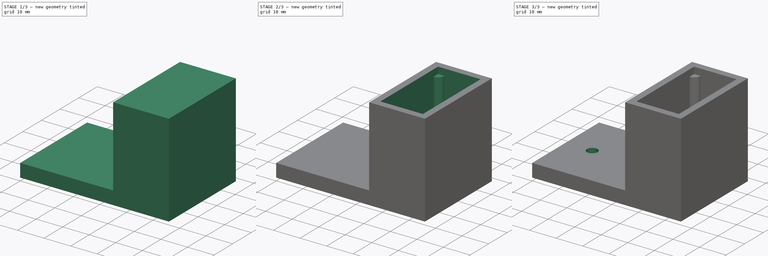
[diagram: build sequence overview — one tinted view per stage of 3, left to right]
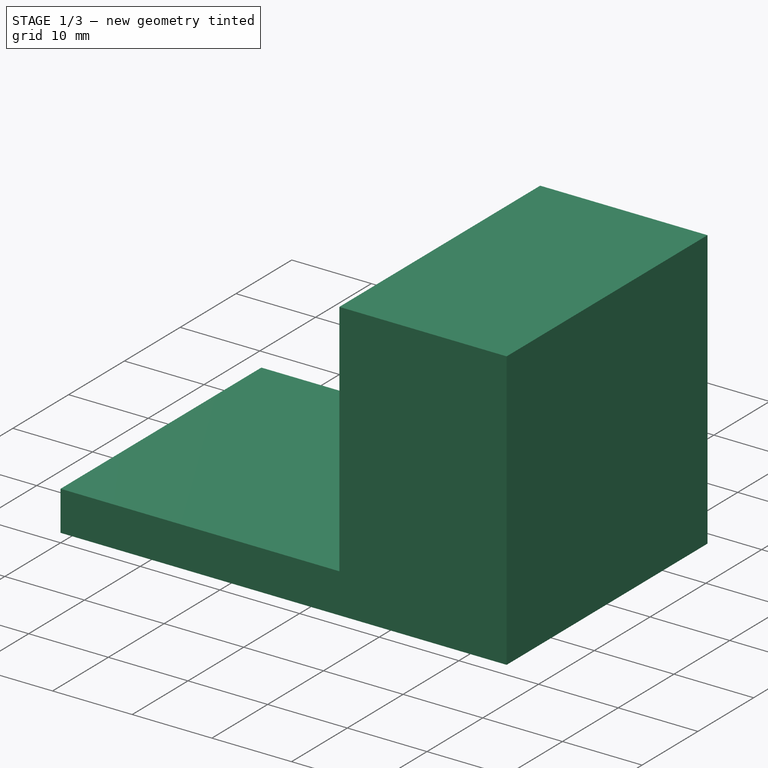
[diagram: stage 1 of 3 — iso view after this stage's code; geometry added in this stage tinted green]
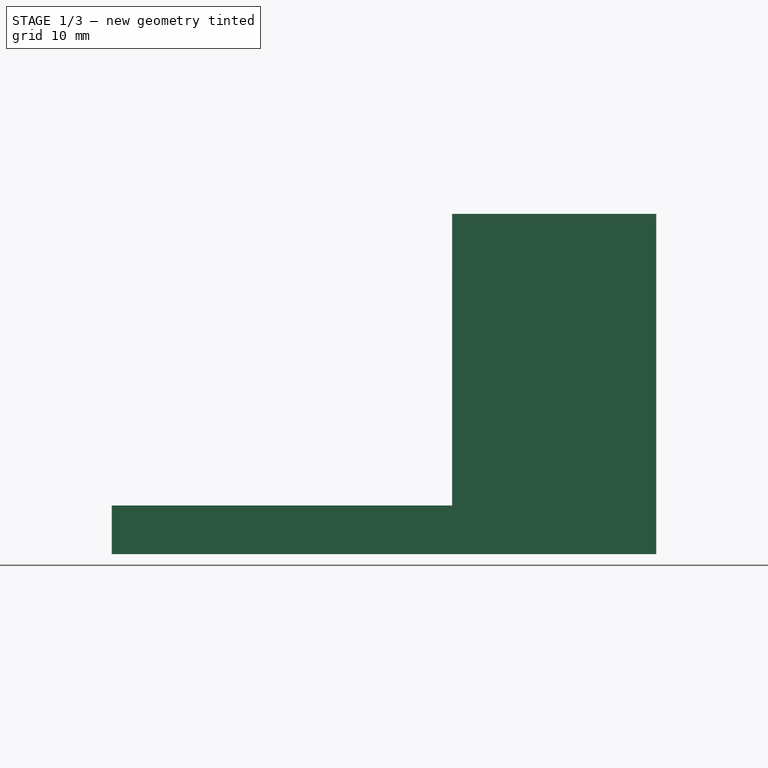
[diagram: stage 1 of 3 — front view after this stage's code; geometry added in this stage tinted green]
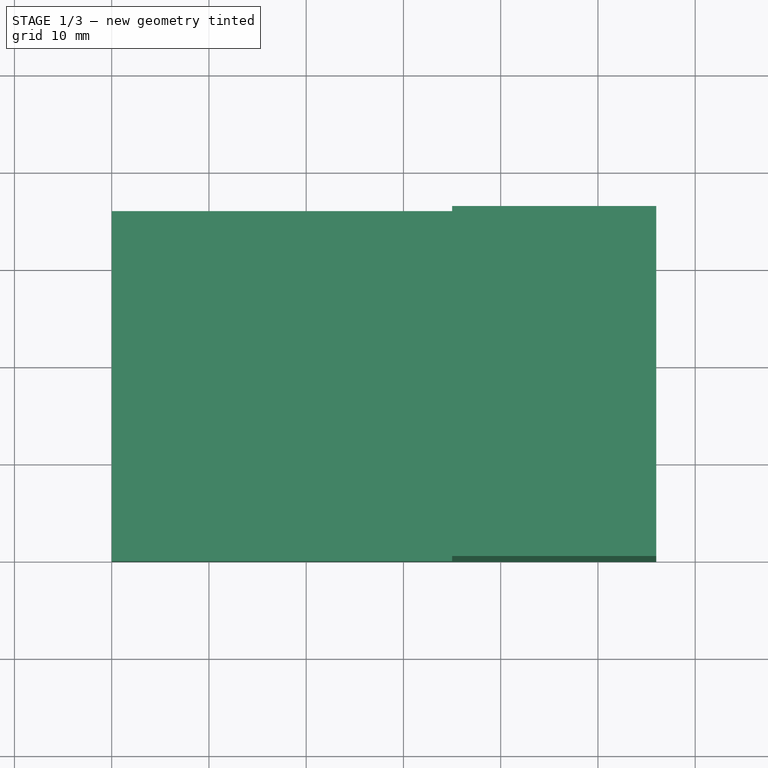
[diagram: stage 1 of 3 — top view after this stage's code; geometry added in this stage tinted green]
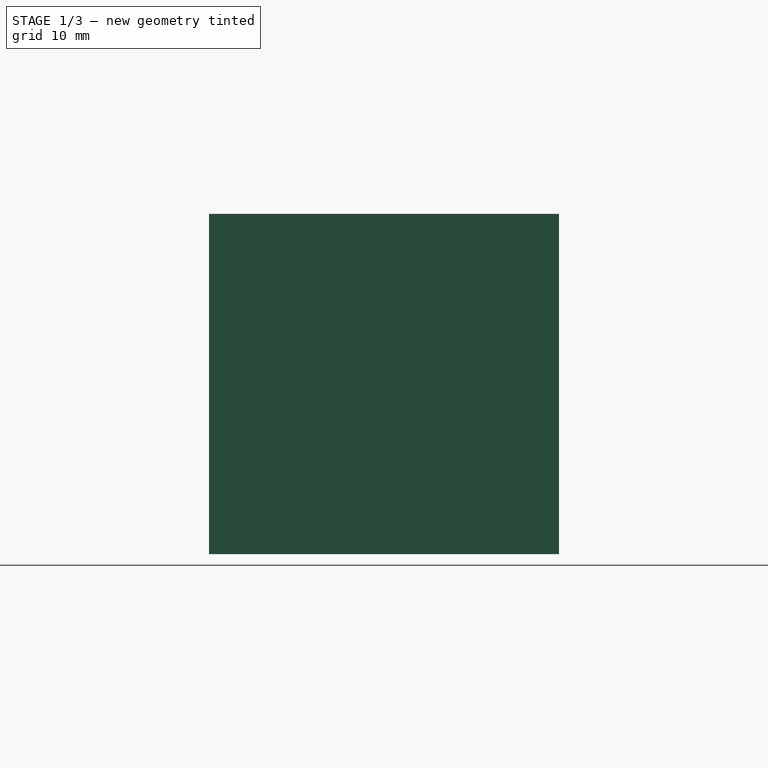
[diagram: stage 1 of 3 — right view after this stage's code; geometry added in this stage tinted green]
FCSTD DOCUMENT  (FreeCAD 0.20R29410 (Git))
Label: body
License: All rights reserved
LicenseURL: http://en.wikipedia.org/wiki/All_rights_reserved
objects: Sketcher::SketchObject×6, PartDesign::Pad×3, PartDesign::Pocket×3, Spreadsheet::Sheet×1, PartDesign::Body×1, App::Part×1
note: 19 computed .brp shape members not serialized (recipe doc carries the construction recipe); baked Part::Feature solids carry a one-line shape summary decoded from their .brp

FEATURE [Sketcher::SketchObject] Sketch
  FullyConstrained = true
  MapMode = 5
  Support = -> [XY_Plane001]
  expr: Constraints[10] = <<P>>.switchBoxLength
  expr: Constraints[9] = <<P>>.tabLength + <<P>>.switchBoxWidth
  sketch-geometry (4):
    g0: LineSegment StartX=0 StartY=0 StartZ=0 EndX=56 EndY=0 EndZ=0
    g1: LineSegment StartX=56 StartY=0 StartZ=0 EndX=56 EndY=36 EndZ=0
    g2: LineSegment StartX=56 StartY=36 StartZ=0 EndX=0 EndY=36 EndZ=0
    g3: LineSegment StartX=0 StartY=36 StartZ=0 EndX=0 EndY=0 EndZ=0
  constraints (11):
    c: Coincident(g0,g1)
    c: Coincident(g1,g2)
    c: Coincident(g2,g3)
    c: Coincident(g3,g0)
    c: Horizontal(g0)
    c: Horizontal(g2)
    c: Vertical(g1)
    c: Vertical(g3)
    c: Coincident(g0,g-1)
    c: DistanceX(g2,g2) = 56
    c: DistanceY(g1,g1) = 36
FEATURE [PartDesign::Pad] Pad  label="base-pad"
  Direction = (0,0,1)
  Length = 5
  Length2 = 10
  Profile = -> Sketch
  ReferenceAxis = -> Sketch [N_Axis]
  Type = 0
FEATURE [Sketcher::SketchObject] Sketch001
  ExternalGeometry = -> [Pad]
  FullyConstrained = true
  MapMode = 5
  Placement = pos=(0,0,5) rot=(0,0,1;0rad)
  Support = -> [Pad]
  expr: Constraints[10] = <<P>>.switchBoxWidth
  sketch-geometry (4):
    g0: LineSegment StartX=56 StartY=36 StartZ=0 EndX=35 EndY=36 EndZ=0
    g1: LineSegment StartX=35 StartY=36 StartZ=0 EndX=35 EndY=0 EndZ=0
    g2: LineSegment StartX=35 StartY=0 StartZ=0 EndX=56 EndY=0 EndZ=0
    g3: LineSegment StartX=56 StartY=0 StartZ=0 EndX=56 EndY=36 EndZ=0
  constraints (11):
    c: Coincident(g0,g1)
    c: Coincident(g1,g2)
    c: Coincident(g2,g3)
    c: Coincident(g3,g0)
    c: Horizontal(g0)
    c: Horizontal(g2)
    c: Vertical(g1)
    c: Vertical(g3)
    c: Coincident(g0,g-4)
    c: DistanceY(g-5,g1) = 0
    c: DistanceX(g0,g0) = 21
FEATURE [PartDesign::Pad] Pad001  label="switch-box-pad"
  BaseFeature = -> Pad
  Direction = (0,0,1)
  Length = 30
  Length2 = 10
  Profile = -> Sketch001
  ReferenceAxis = -> Sketch001 [N_Axis]
  Type = 0
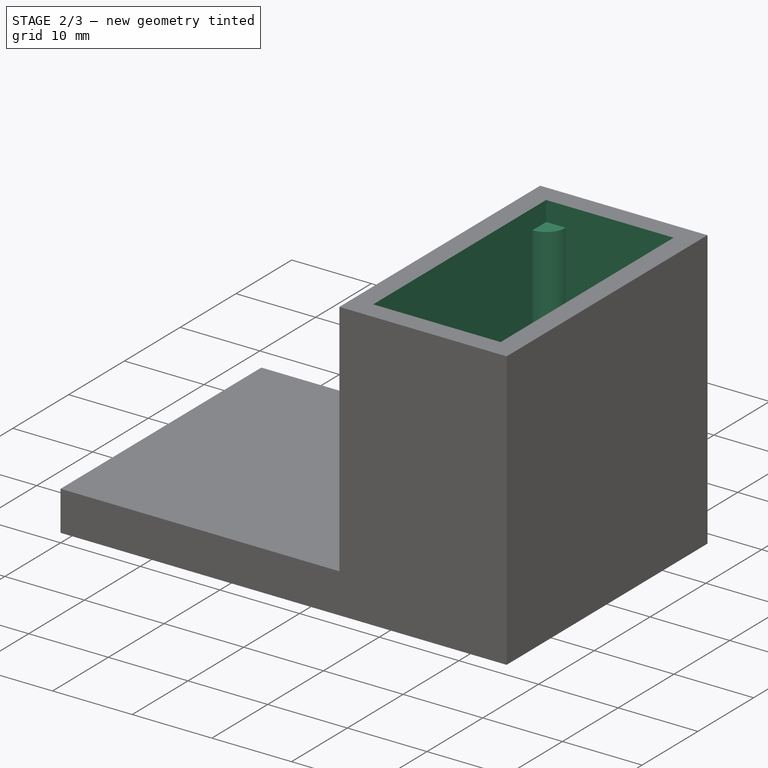
[diagram: stage 2 of 3 — iso view after this stage's code; geometry added in this stage tinted green]
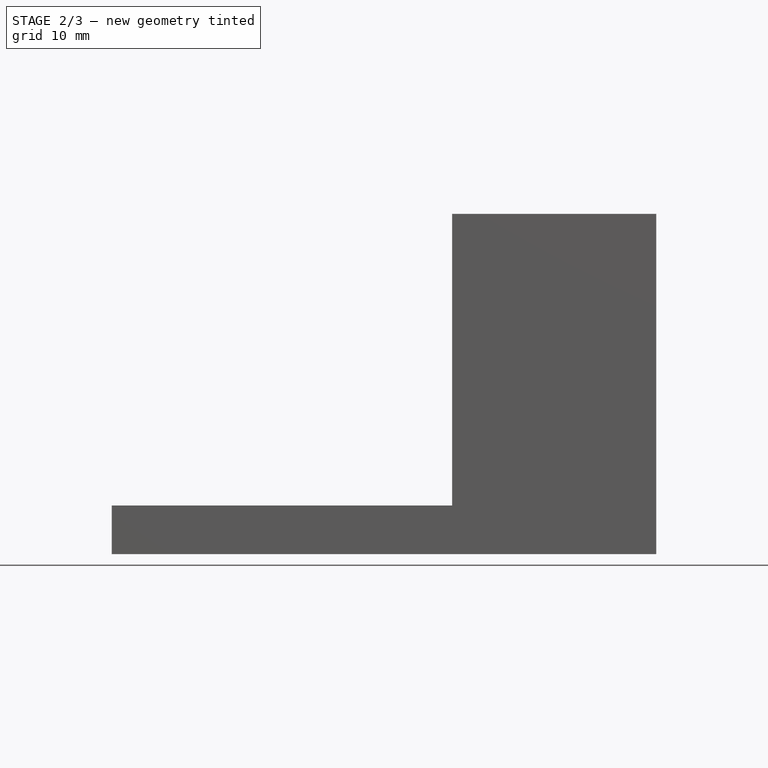
[diagram: stage 2 of 3 — front view after this stage's code; geometry added in this stage tinted green]
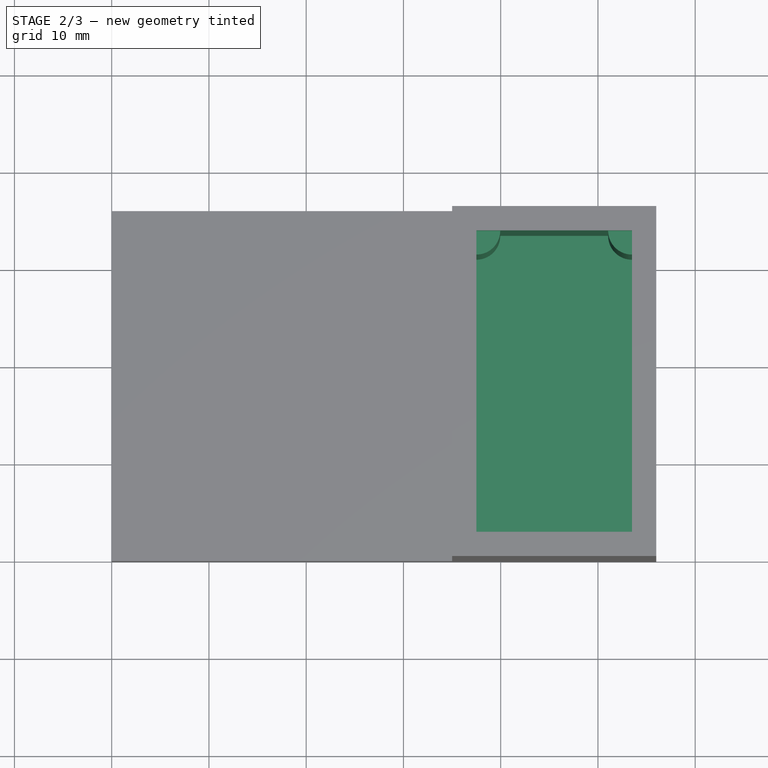
[diagram: stage 2 of 3 — top view after this stage's code; geometry added in this stage tinted green]
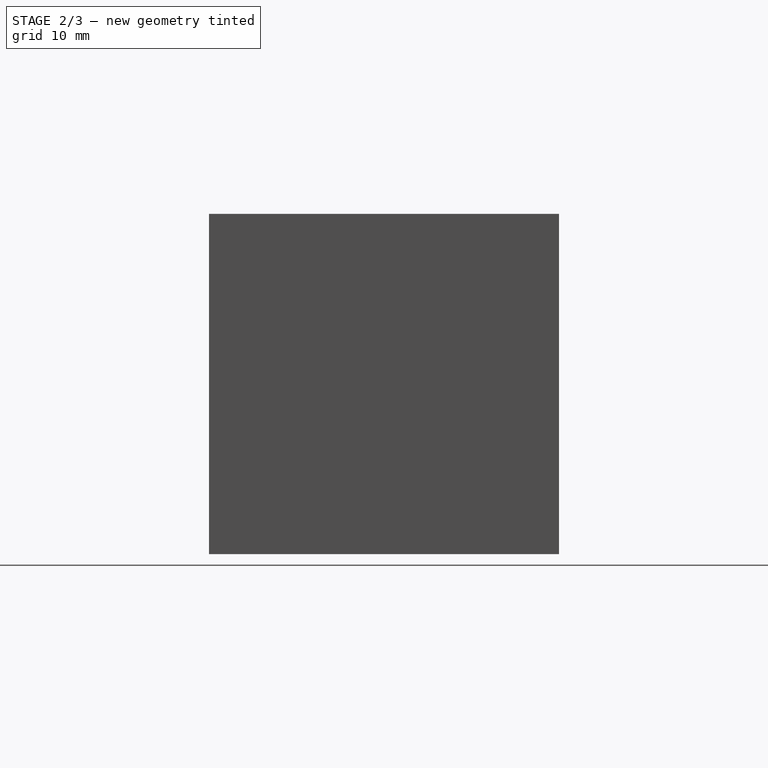
[diagram: stage 2 of 3 — right view after this stage's code; geometry added in this stage tinted green]
FEATURE [Sketcher::SketchObject] Sketch002
  ExternalGeometry = -> [Pad001]
  FullyConstrained = true
  MapMode = 5
  Placement = pos=(0,0,35) rot=(0,0,1;0rad)
  Support = -> [Pad001]
  expr: Constraints[10] = <<P>>.wallThickness
  expr: Constraints[11] = <<P>>.wallThickness
  expr: Constraints[8] = <<P>>.wallThickness
  expr: Constraints[9] = <<P>>.wallThickness
  sketch-geometry (4):
    g0: LineSegment StartX=37.5 StartY=33.5 StartZ=0 EndX=53.5 EndY=33.5 EndZ=0
    g1: LineSegment StartX=53.5 StartY=33.5 StartZ=0 EndX=53.5 EndY=2.5 EndZ=0
    g2: LineSegment StartX=53.5 StartY=2.5 StartZ=0 EndX=37.5 EndY=2.5 EndZ=0
    g3: LineSegment StartX=37.5 StartY=2.5 StartZ=0 EndX=37.5 EndY=33.5 EndZ=0
  constraints (12):
    c: Coincident(g0,g1)
    c: Coincident(g1,g2)
    c: Coincident(g2,g3)
    c: Coincident(g3,g0)
    c: Horizontal(g0)
    c: Horizontal(g2)
    c: Vertical(g1)
    c: Vertical(g3)
    c: DistanceY(g0,g-3) = 2.5
    c: DistanceY(g-3,g2) = 2.5
    c: DistanceX(g-3,g2) = 2.5
    c: DistanceX(g1,g-4) = 2.5
FEATURE [Spreadsheet::Sheet] Spreadsheet  label="P"
  cells = A1=wallThickness; B1(wallThickness)=2.5; A2=switchBoxHeight; B2(switchBoxHeight)==D2 - tabThickness / 2; C2=interior height; D2=33; A3=switchBoxLength; B3(switchBoxLength)=36; A4=switchBoxWidth; B4(switchBoxWidth)=21; A5=tabThickness; B5(tabThickness)=5; A6=tabLength; B6(tabLength)=35
FEATURE [PartDesign::Pocket] Pocket  label="switch-box-interior-pocket"
  BaseFeature = -> Pad001
  Direction = (0,0,-1)
  Length = 33
  Length2 = 5
  Profile = -> Sketch002
  ReferenceAxis = -> Sketch002 [N_Axis]
  Type = 0
  expr: Length = <<P>>.switchBoxHeight + <<P>>.tabThickness * 0.5
FEATURE [Sketcher::SketchObject] Sketch003
  ExternalGeometry = -> [Pocket]
  FullyConstrained = true
  MapMode = 5
  Placement = pos=(0,0,2) rot=(0,0,1;0rad)
  Support = -> [Pocket]
  expr: Constraints[1] = 2 * <<P>>.wallThickness - 0.1
  expr: Constraints[5] = 2 * <<P>>.wallThickness - 0.1
  expr: Constraints[6] = 2 * <<P>>.wallThickness - 0.1
  expr: Constraints[7] = 2 * <<P>>.wallThickness - 0.1
  sketch-geometry (4):
    g0: Circle CenterX=37.5 CenterY=33.5 CenterZ=0 NormalX=0 NormalY=0 NormalZ=1 AngleXU=0 Radius=2.45
    g1: Circle CenterX=53.5 CenterY=33.5 CenterZ=0 NormalX=0 NormalY=0 NormalZ=1 AngleXU=0 Radius=2.45
    g2: Circle CenterX=37.5 CenterY=2.5 CenterZ=0 NormalX=0 NormalY=0 NormalZ=1 AngleXU=0 Radius=2.45
    g3: Circle CenterX=53.5 CenterY=2.5 CenterZ=0 NormalX=0 NormalY=0 NormalZ=1 AngleXU=0 Radius=2.45
  constraints (8):
    c: Coincident(g0,g-4)
    c: Diameter(g0) = 4.9
    c: Coincident(g1,g-5)
    c: Coincident(g2,g-3)
    c: Coincident(g3,g-5)
    c: Diameter(g2) = 4.9
    c: Diameter(g3) = 4.9
    c: Diameter(g1) = 4.9
FEATURE [PartDesign::Pad] Pad002  label="switch-support-pads"
  BaseFeature = -> Pocket
  Direction = (0,0,1)
  Length = 30.5
  Length2 = 10
  Profile = -> Sketch003
  ReferenceAxis = -> Sketch003 [N_Axis]
  Type = 0
  expr: Length = <<P>>.switchBoxHeight
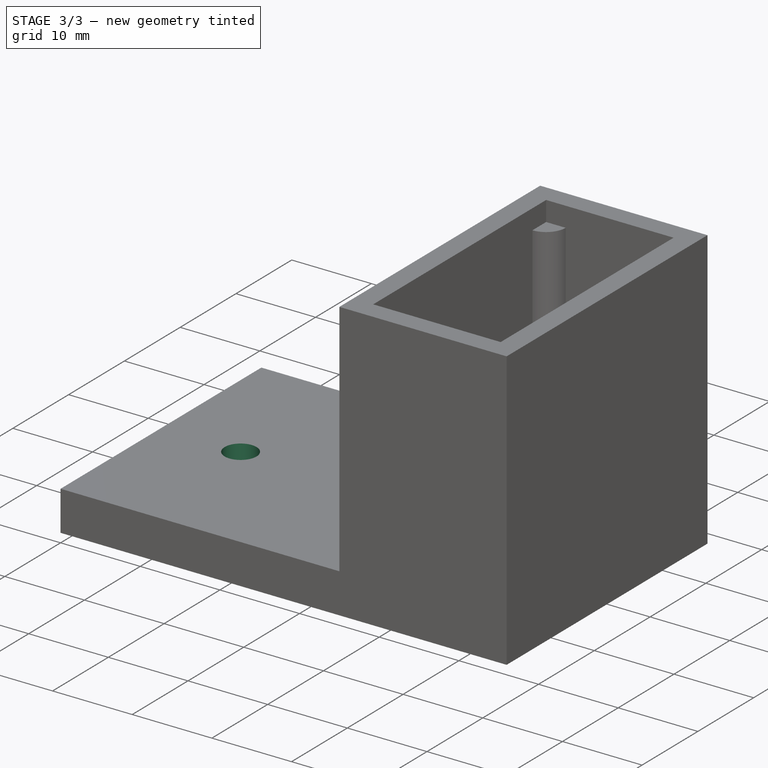
[diagram: stage 3 of 3 — iso view after this stage's code; geometry added in this stage tinted green]
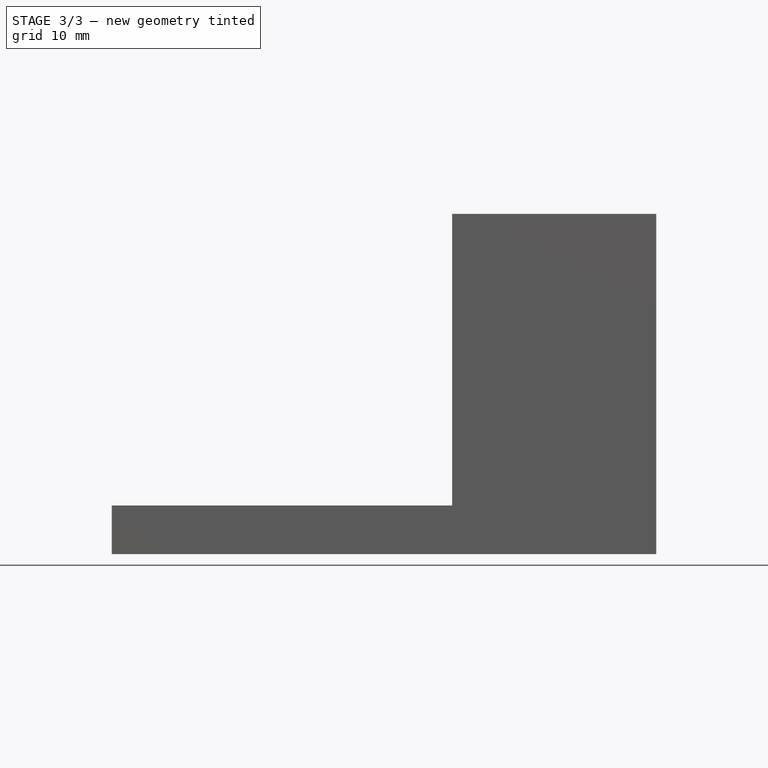
[diagram: stage 3 of 3 — front view after this stage's code; geometry added in this stage tinted green]
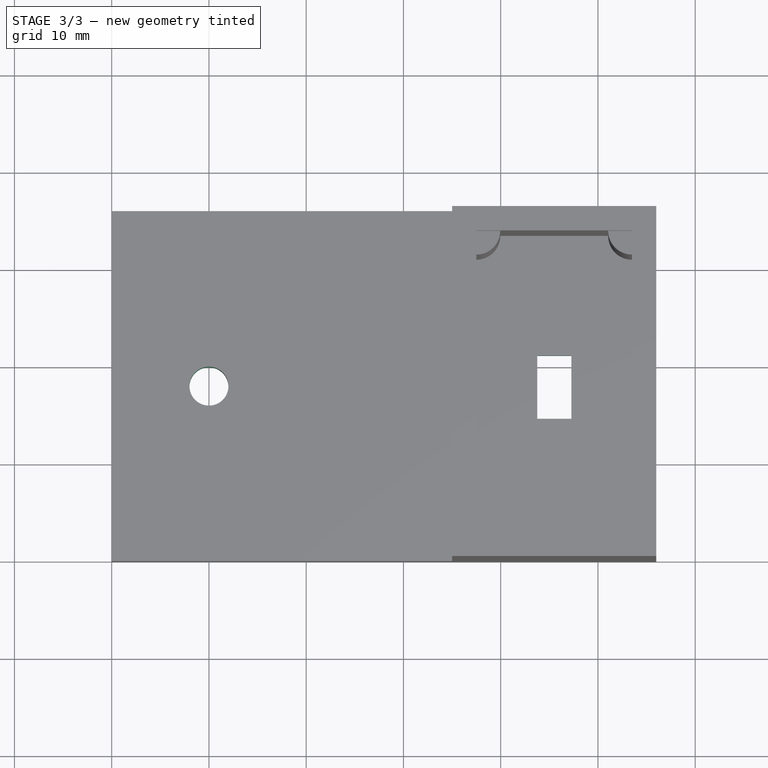
[diagram: stage 3 of 3 — top view after this stage's code; geometry added in this stage tinted green]
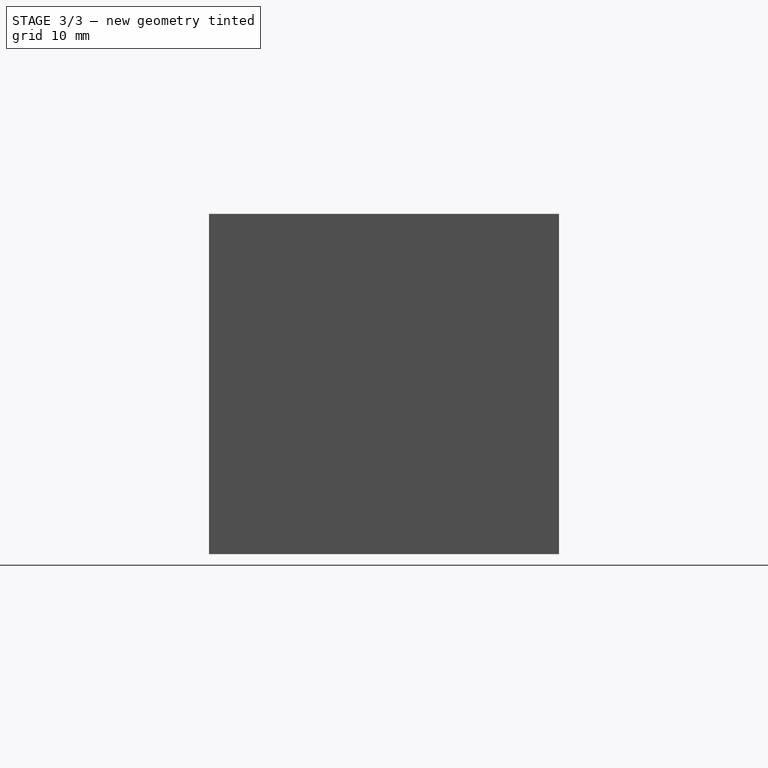
[diagram: stage 3 of 3 — right view after this stage's code; geometry added in this stage tinted green]
FEATURE [Sketcher::SketchObject] Sketch004
  ExternalGeometry = -> [Pad002]
  FullyConstrained = false
  MapMode = 5
  Placement = pos=(0,0,2) rot=(0,0,1;0rad)
  Support = -> [Pad002]
  sketch-geometry (7):
    g0: LineSegment StartX=43.7633 StartY=21.1912 StartZ=0 EndX=47.2633 EndY=21.1912 EndZ=0
    g1: LineSegment StartX=47.2633 StartY=21.1912 StartZ=0 EndX=47.2633 EndY=14.6912 EndZ=0
    g2: LineSegment StartX=47.2633 StartY=14.6912 StartZ=0 EndX=43.7633 EndY=14.6912 EndZ=0
    g3: LineSegment StartX=43.7633 StartY=14.6912 StartZ=0 EndX=43.7633 EndY=21.1912 EndZ=0
    g4: LineSegment StartX=37.5 StartY=33.5 StartZ=0 EndX=53.5 EndY=2.5 EndZ=0
    g5: LineSegment StartX=53.5 StartY=33.2988 StartZ=0 EndX=53.5 EndY=33.5 EndZ=0
    g6: LineSegment StartX=53.5 StartY=33.2988 StartZ=0 EndX=37.5 EndY=2.5 EndZ=0
  constraints (15):
    c: Coincident(g0,g1)
    c: Coincident(g1,g2)
    c: Coincident(g2,g3)
    c: Coincident(g3,g0)
    c: Horizontal(g0)
    c: Horizontal(g2)
    c: Vertical(g1)
    c: Vertical(g3)
    c: DistanceX(g0,g0) = 3.5
    c: DistanceY(g1,g1) = 6.5
    c: Coincident(g4,g-3)
    c: PointOnObject(g5,g-4)
    c: Coincident(g5,g-4)
    c: Coincident(g6,g5)
    c: Coincident(g6,g-3)
FEATURE [PartDesign::Pocket] Pocket001  label="power-cord-slot"
  BaseFeature = -> Pad002
  Direction = (0,0,-1)
  Length = 5
  Length2 = 5
  Profile = -> Sketch004
  ReferenceAxis = -> Sketch004 [N_Axis]
  Type = 2
FEATURE [Sketcher::SketchObject] Sketch005
  ExternalGeometry = -> [Pocket001]
  FullyConstrained = true
  MapMode = 5
  Placement = pos=(0,0,5) rot=(0,0,1;0rad)
  Support = -> [Pocket001]
  expr: Constraints[2] = <<P>>.switchBoxLength / 2
  sketch-geometry (1):
    g0: Circle CenterX=10 CenterY=18 CenterZ=0 NormalX=0 NormalY=0 NormalZ=1 AngleXU=0 Radius=2
  constraints (3):
    c: Diameter(g0) = 4
    c: DistanceX(g0,g-4) = 25
    c: DistanceY(g-1,g0) = 18
FEATURE [PartDesign::Pocket] Pocket002
  BaseFeature = -> Pocket001
  Direction = (0,0,-1)
  Length = 5
  Length2 = 5
  Profile = -> Sketch005
  ReferenceAxis = -> Sketch005 [N_Axis]
  Type = 2
FEATURE [PartDesign::Body] Body
  Group = -> [Sketch,Pad,Sketch001,Pad001,Sketch002,Pocket,Sketch003,Pad002,Sketch004,Pocket001,Sketch005,Pocket002]
  Origin = -> Origin001
  Tip = -> Pocket002
FEATURE [App::Part] Part
  Group = -> [Body]
  Origin = -> Origin
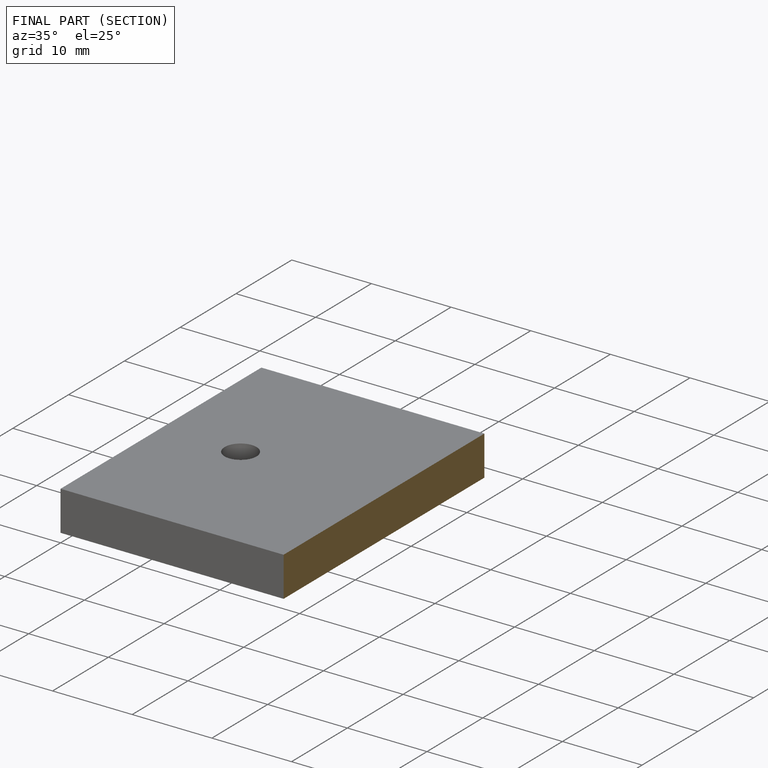
[diagram: finished part — half-section view (interior)]
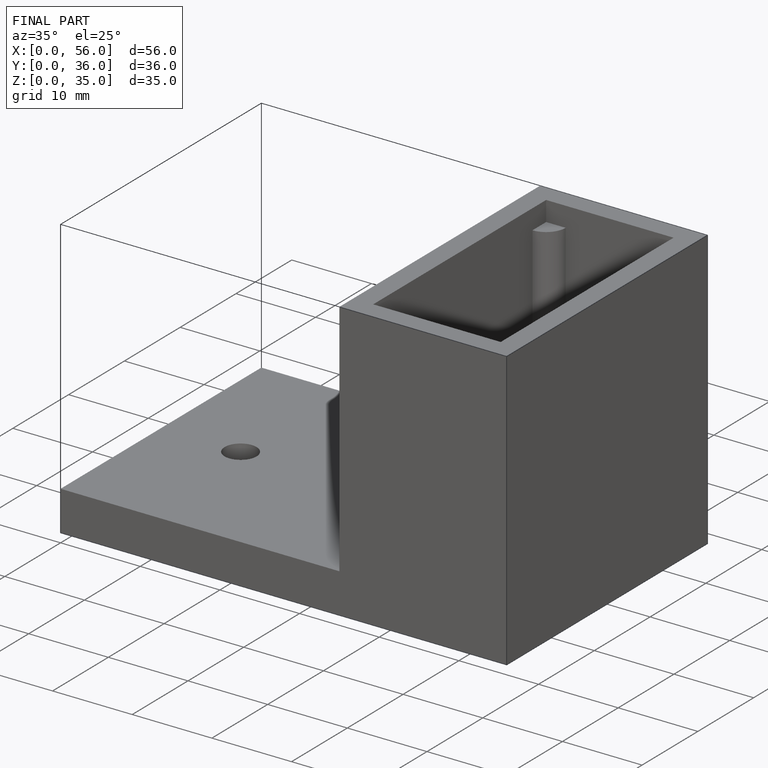
[diagram: finished part — iso view with bounding-box wireframe]
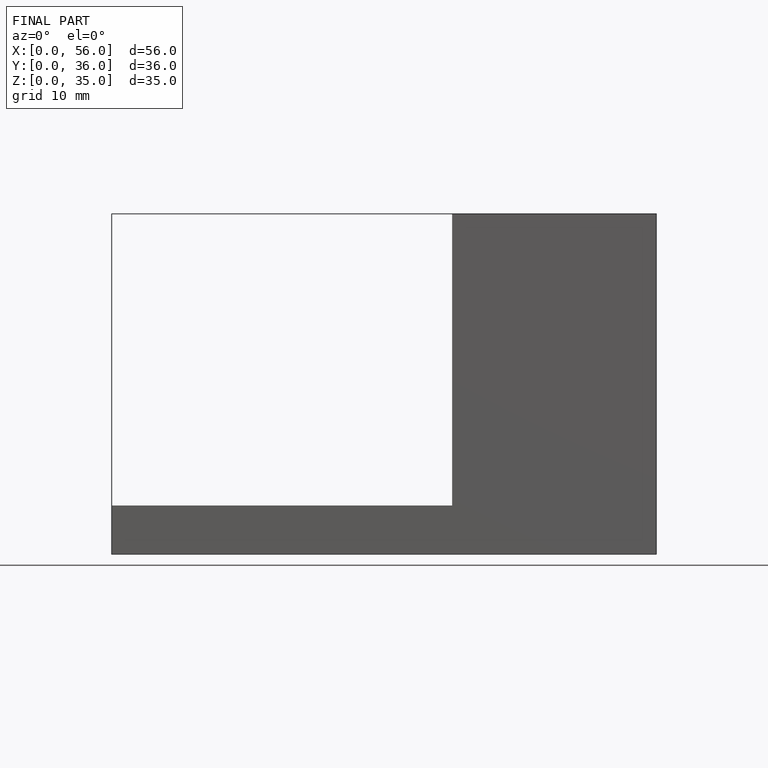
[diagram: finished part — front view with bounding-box wireframe]
